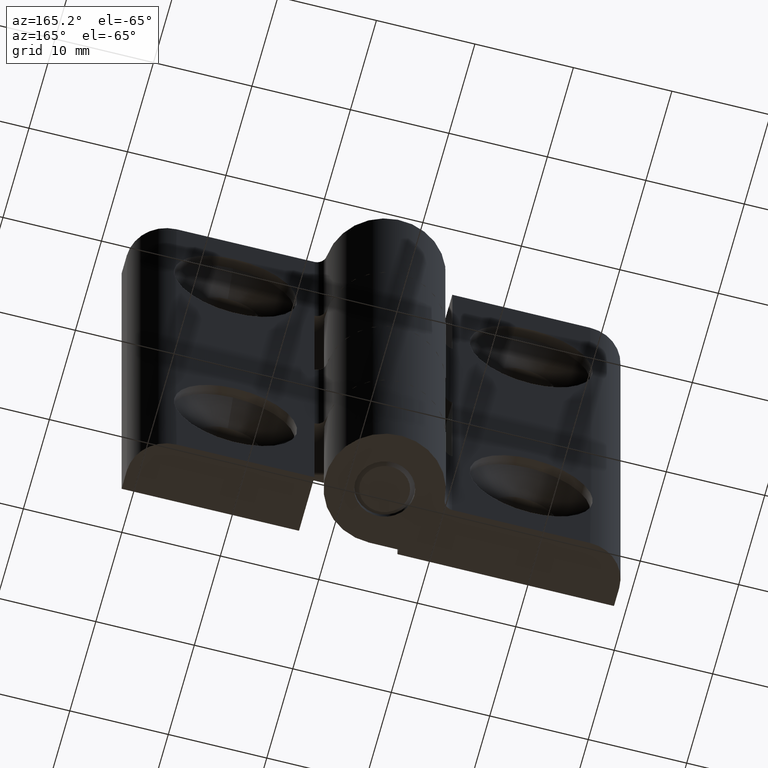
[diagram: clean part render]
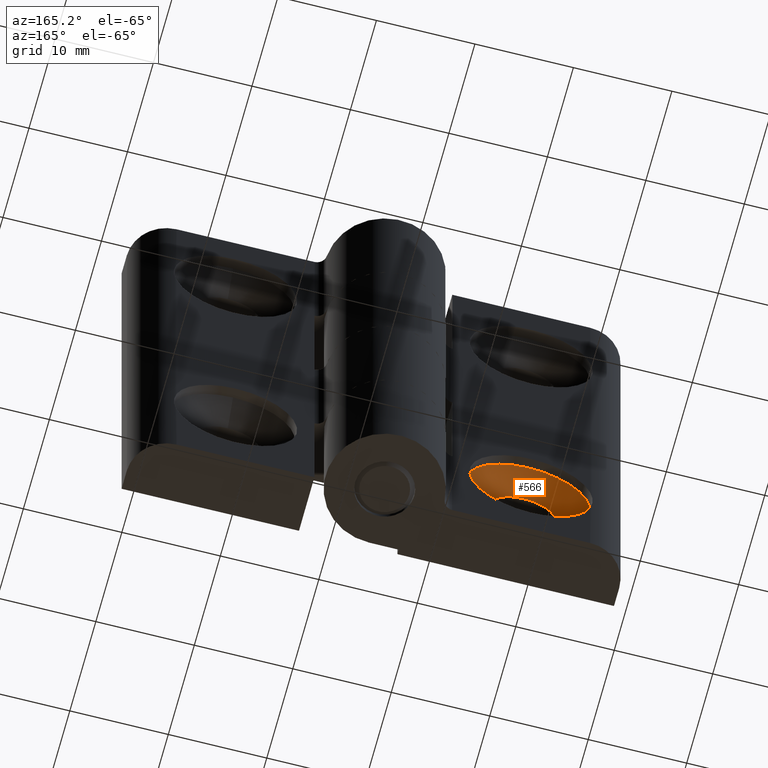
[diagram: same view with one face highlighted and labeled with its STEP entity id]
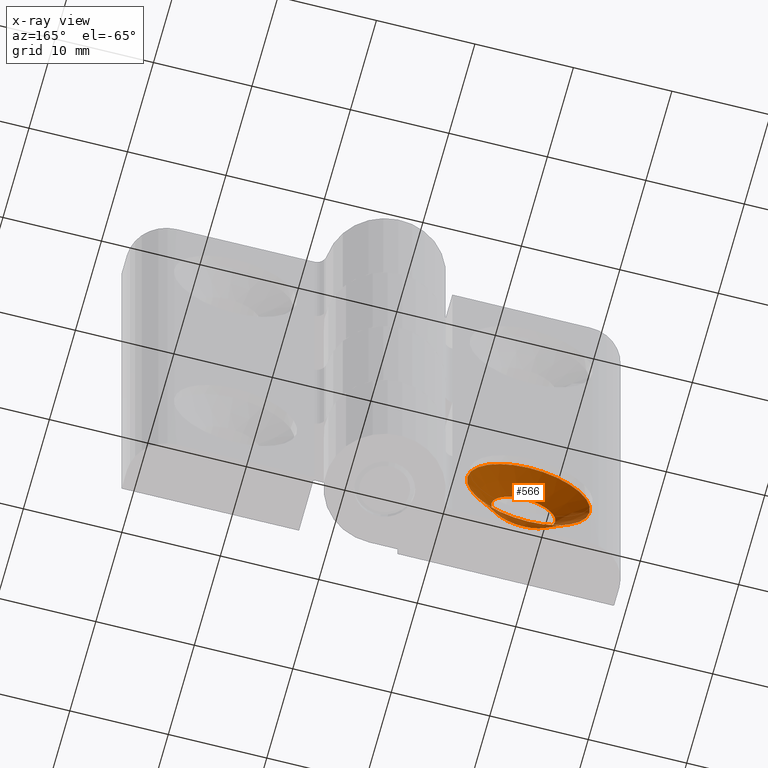
[diagram: x-ray of the same camera — body ghosted, the highlighted face saturated]
A machine part, auxiliary view. The second image highlights one B-rep face of the part: STEP entity #566.
The next image is the same camera in x-ray: the body ghosted, the highlighted face saturated — about 0% of this face is hidden behind the body in this view.
In plain terms, the highlighted conical surface has half-angle 56.31 deg.
Its self-contained STEP definition (entity closure, byte-faithful):
#137=CONICAL_SURFACE('',#622,6.25,0.982793723247329);
#152=FACE_BOUND('',#227,.T.);
#182=FACE_OUTER_BOUND('',#226,.T.);
#226=EDGE_LOOP('',(#511));
#227=EDGE_LOOP('',(#512));
#240=CIRCLE('',#579,6.25);
#261=CIRCLE('',#623,3.25);
#266=VERTEX_POINT('',#814);
#313=VERTEX_POINT('',#960);
#318=EDGE_CURVE('',#266,#266,#240,.T.);
#384=EDGE_CURVE('',#313,#313,#261,.T.);
#511=ORIENTED_EDGE('',*,*,#384,.T.);
#512=ORIENTED_EDGE('',*,*,#318,.F.);
#566=ADVANCED_FACE('',(#182,#152),#137,.F.);
#579=AXIS2_PLACEMENT_3D('',#815,#645,#646);
#622=AXIS2_PLACEMENT_3D('',#959,#774,#775);
#623=AXIS2_PLACEMENT_3D('',#961,#776,#777);
#645=DIRECTION('center_axis',(0.,-1.,0.));
#646=DIRECTION('ref_axis',(0.,0.,-1.));
#774=DIRECTION('center_axis',(0.,1.,0.));
#775=DIRECTION('ref_axis',(0.,0.,1.));
#776=DIRECTION('center_axis',(0.,-1.,0.));
#777=DIRECTION('ref_axis',(0.,0.,-1.));
#814=CARTESIAN_POINT('',(-15.,5.,-21.25));
#815=CARTESIAN_POINT('Origin',(-15.,5.,-15.));
#959=CARTESIAN_POINT('Origin',(-15.,5.,-15.));
#960=CARTESIAN_POINT('',(-15.,3.,-18.25));
#961=CARTESIAN_POINT('Origin',(-15.,3.,-15.));